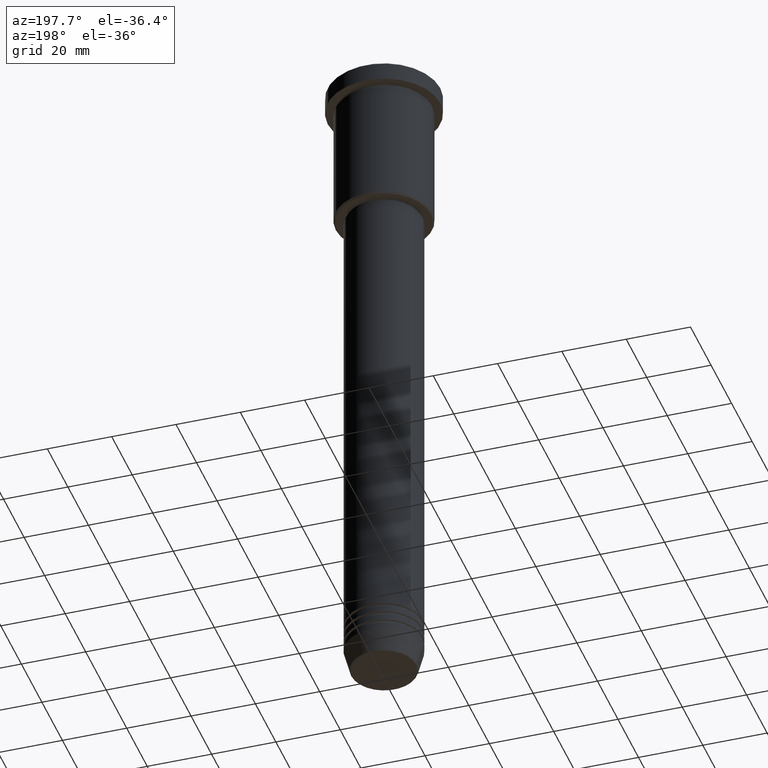
[diagram: clean part render]
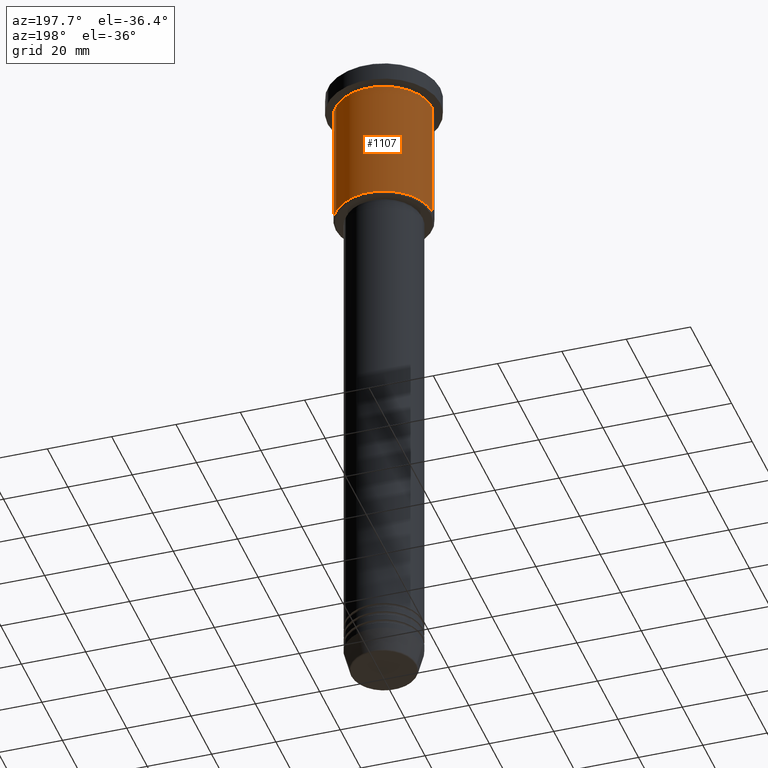
[diagram: same view with one face highlighted and labeled with its STEP entity id]
A machine part, auxiliary view. The second image highlights one B-rep face of the part: STEP entity #1107.
In plain terms, the highlighted cylindrical surface (partial cylindrical patch) has radius 15 mm, axis along (-0, -0, 1).
Its self-contained STEP definition (entity closure, byte-faithful):
#68 = DIRECTION ( 'NONE',  ( -0.000000000000000000, -0.000000000000000000, 1.000000000000000000 ) ) ;
#73 = VERTEX_POINT ( 'NONE', #318 ) ;
#90 = ORIENTED_EDGE ( 'NONE', *, *, #777, .T. ) ;
#122 = CARTESIAN_POINT ( 'NONE',  ( 15.00000000000000000, 0.000000000000000000, -6.999999999999995559 ) ) ;
#125 = AXIS2_PLACEMENT_3D ( 'NONE', #884, #68, #728 ) ;
#165 = VECTOR ( 'NONE', #770, 1000.000000000000000 ) ;
#166 = CYLINDRICAL_SURFACE ( 'NONE', #125, 15.00000000000000000 ) ;
#197 = CARTESIAN_POINT ( 'NONE',  ( 15.00000000000000000, 0.000000000000000000, 0.000000000000000000 ) ) ;
#212 = DIRECTION ( 'NONE',  ( -0.000000000000000000, -0.000000000000000000, 1.000000000000000000 ) ) ;
#318 = CARTESIAN_POINT ( 'NONE',  ( -15.00000000000000000, 1.836970198721029589E-15, -45.50000000000000000 ) ) ;
#327 = VECTOR ( 'NONE', #212, 1000.000000000000000 ) ;
#358 = ORIENTED_EDGE ( 'NONE', *, *, #373, .F. ) ;
#373 = EDGE_CURVE ( 'NONE', #442, #825, #854, .T. ) ;
#375 = DIRECTION ( 'NONE',  ( -0.000000000000000000, -0.000000000000000000, 1.000000000000000000 ) ) ;
#383 = AXIS2_PLACEMENT_3D ( 'NONE', #827, #1001, #1161 ) ;
#386 = DIRECTION ( 'NONE',  ( 1.000000000000000000, 0.000000000000000000, 0.000000000000000000 ) ) ;
#402 = FACE_OUTER_BOUND ( 'NONE', #484, .T. ) ;
#442 = VERTEX_POINT ( 'NONE', #1101 ) ;
#454 = EDGE_CURVE ( 'NONE', #73, #1036, #678, .T. ) ;
#484 = EDGE_LOOP ( 'NONE', ( #90, #1007, #971, #358 ) ) ;
#588 = CARTESIAN_POINT ( 'NONE',  ( 0.000000000000000000, 0.000000000000000000, -6.999999999999995559 ) ) ;
#595 = CARTESIAN_POINT ( 'NONE',  ( -15.00000000000000000, 1.836970198721029589E-15, -6.999999999999995559 ) ) ;
#678 = LINE ( 'NONE', #750, #165 ) ;
#728 = DIRECTION ( 'NONE',  ( 1.000000000000000000, 0.000000000000000000, 0.000000000000000000 ) ) ;
#750 = CARTESIAN_POINT ( 'NONE',  ( -15.00000000000000000, 1.836970198721029589E-15, 0.000000000000000000 ) ) ;
#770 = DIRECTION ( 'NONE',  ( -0.000000000000000000, -0.000000000000000000, 1.000000000000000000 ) ) ;
#777 = EDGE_CURVE ( 'NONE', #442, #73, #904, .T. ) ;
#825 = VERTEX_POINT ( 'NONE', #122 ) ;
#827 = CARTESIAN_POINT ( 'NONE',  ( 0.000000000000000000, 0.000000000000000000, -45.50000000000000000 ) ) ;
#854 = LINE ( 'NONE', #197, #327 ) ;
#872 = EDGE_CURVE ( 'NONE', #825, #1036, #1085, .T. ) ;
#884 = CARTESIAN_POINT ( 'NONE',  ( 0.000000000000000000, 0.000000000000000000, 0.000000000000000000 ) ) ;
#904 = CIRCLE ( 'NONE', #383, 15.00000000000000000 ) ;
#971 = ORIENTED_EDGE ( 'NONE', *, *, #872, .F. ) ;
#1001 = DIRECTION ( 'NONE',  ( -0.000000000000000000, -0.000000000000000000, 1.000000000000000000 ) ) ;
#1007 = ORIENTED_EDGE ( 'NONE', *, *, #454, .T. ) ;
#1036 = VERTEX_POINT ( 'NONE', #595 ) ;
#1085 = CIRCLE ( 'NONE', #1171, 15.00000000000000000 ) ;
#1101 = CARTESIAN_POINT ( 'NONE',  ( 15.00000000000000000, 0.000000000000000000, -45.50000000000000000 ) ) ;
#1107 = ADVANCED_FACE ( 'NONE', ( #402 ), #166, .T. ) ;
#1161 = DIRECTION ( 'NONE',  ( -1.000000000000000000, 0.000000000000000000, 0.000000000000000000 ) ) ;
#1171 = AXIS2_PLACEMENT_3D ( 'NONE', #588, #375, #386 ) ;